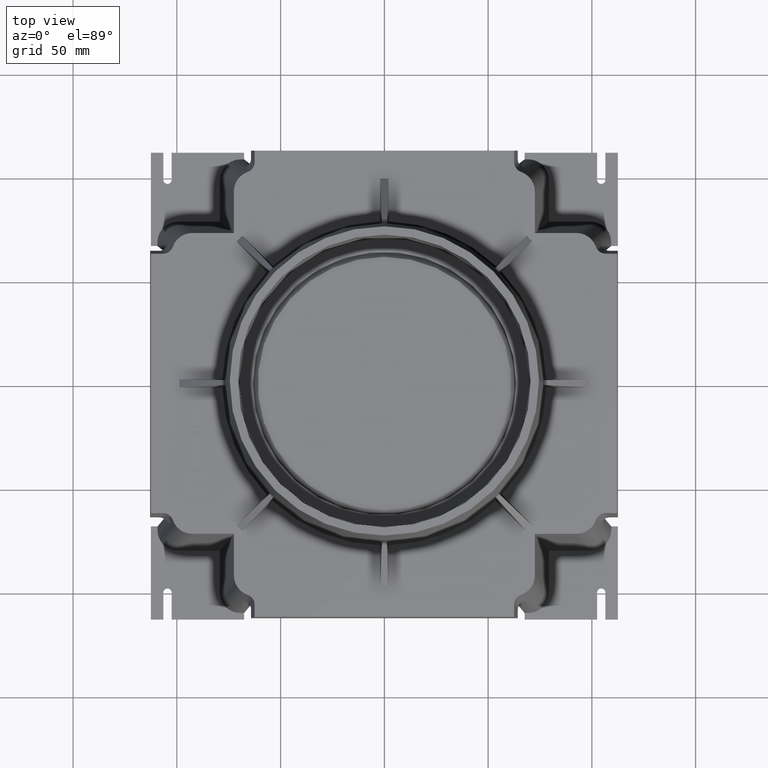
[diagram: clean part render]
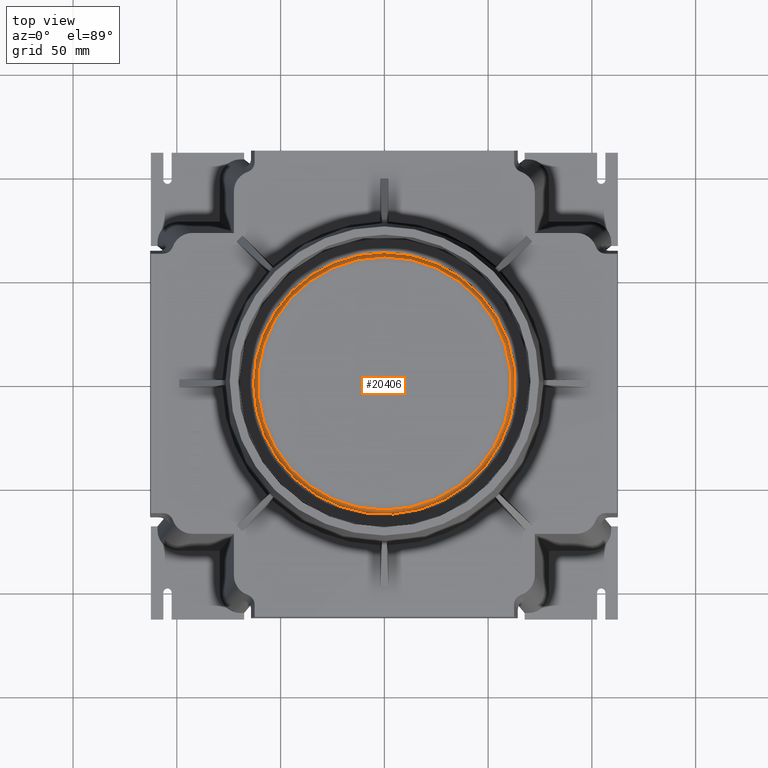
[diagram: same view with one face highlighted and labeled with its STEP entity id]
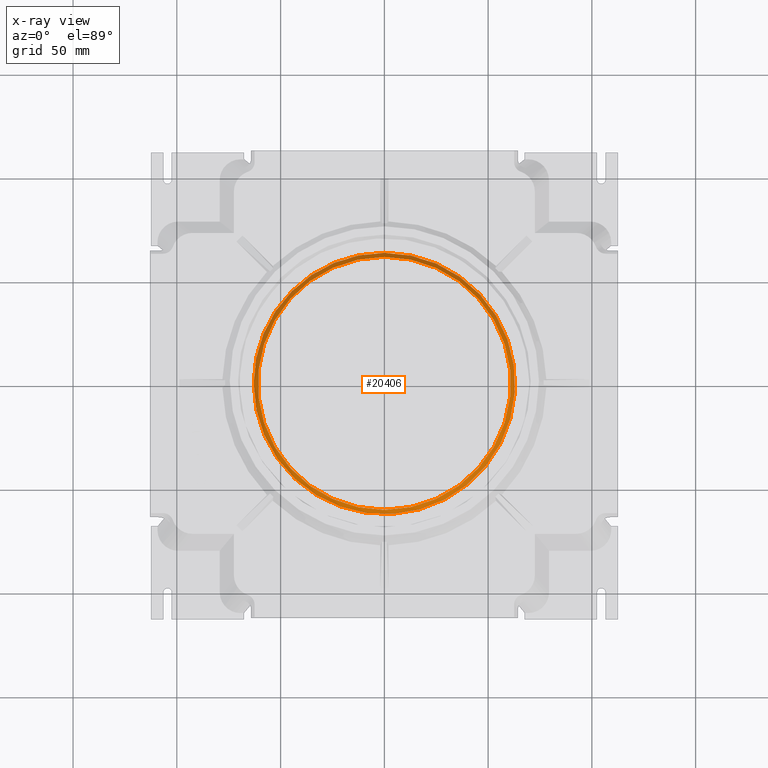
[diagram: x-ray of the same camera — body ghosted, the highlighted face saturated]
A machine part, top view. The second image highlights one B-rep face of the part: STEP entity #20406.
The next image is the same camera in x-ray: the body ghosted, the highlighted face saturated — about 0% of this face is hidden behind the body in this view.
In plain terms, the highlighted conical surface has half-angle 32.33 deg.
Its self-contained STEP definition (entity closure, byte-faithful):
#26=CONICAL_SURFACE('',#21536,62.25,0.564268188857933);
#534=CIRCLE('',#21534,61.);
#535=CIRCLE('',#21535,61.);
#536=CIRCLE('',#21537,62.9636916765669);
#537=CIRCLE('',#21538,62.9636916765669);
#1507=FACE_OUTER_BOUND('',#2556,.T.);
#2556=EDGE_LOOP('',(#17532,#17533,#17534,#17535,#17536,#17537));
#4855=LINE('',#34196,#7129);
#7129=VECTOR('',#25965,62.25);
#9257=VERTEX_POINT('',#34190);
#9258=VERTEX_POINT('',#34191);
#9259=VERTEX_POINT('',#34195);
#9260=VERTEX_POINT('',#34197);
#12048=EDGE_CURVE('',#9257,#9258,#534,.T.);
#12049=EDGE_CURVE('',#9258,#9257,#535,.T.);
#12050=EDGE_CURVE('',#9258,#9259,#4855,.T.);
#12051=EDGE_CURVE('',#9260,#9259,#536,.F.);
#12052=EDGE_CURVE('',#9259,#9260,#537,.F.);
#17532=ORIENTED_EDGE('',*,*,#12048,.F.);
#17533=ORIENTED_EDGE('',*,*,#12049,.F.);
#17534=ORIENTED_EDGE('',*,*,#12050,.T.);
#17535=ORIENTED_EDGE('',*,*,#12051,.F.);
#17536=ORIENTED_EDGE('',*,*,#12052,.F.);
#17537=ORIENTED_EDGE('',*,*,#12050,.F.);
#20406=ADVANCED_FACE('',(#1507),#26,.T.);
#21534=AXIS2_PLACEMENT_3D('',#34192,#25959,#25960);
#21535=AXIS2_PLACEMENT_3D('',#34193,#25961,#25962);
#21536=AXIS2_PLACEMENT_3D('',#34194,#25963,#25964);
#21537=AXIS2_PLACEMENT_3D('',#34198,#25966,#25967);
#21538=AXIS2_PLACEMENT_3D('',#34199,#25968,#25969);
#25959=DIRECTION('center_axis',(0.,0.,1.));
#25960=DIRECTION('ref_axis',(0.,-1.,0.));
#25961=DIRECTION('center_axis',(0.,0.,1.));
#25962=DIRECTION('ref_axis',(0.,-1.,0.));
#25963=DIRECTION('center_axis',(0.,0.,-1.));
#25964=DIRECTION('ref_axis',(0.,-1.,0.));
#25965=DIRECTION('',(-6.54938160885081E-17,0.534797593347792,-0.844980197489509));
#25966=DIRECTION('center_axis',(0.,0.,1.));
#25967=DIRECTION('ref_axis',(1.,0.,0.));
#25968=DIRECTION('center_axis',(0.,0.,1.));
#25969=DIRECTION('ref_axis',(1.,0.,0.));
#34190=CARTESIAN_POINT('',(0.,-61.,-2.00000000000001));
#34191=CARTESIAN_POINT('',(-7.47034547479885E-15,61.,-2.00000000000001));
#34192=CARTESIAN_POINT('Origin',(0.,0.,-2.00000000000002));
#34193=CARTESIAN_POINT('Origin',(0.,0.,-2.00000000000002));
#34194=CARTESIAN_POINT('Origin',(0.,0.,-3.97500000000002));
#34195=CARTESIAN_POINT('',(-7.71082834742085E-15,62.9636916765669,-5.10263284897571));
#34196=CARTESIAN_POINT('',(-7.62342632469227E-15,62.25,-3.97500000000002));
#34197=CARTESIAN_POINT('',(-62.9636916765669,-7.71082834742085E-15,-5.10263284897571));
#34198=CARTESIAN_POINT('Origin',(0.,0.,-5.10263284897571));
#34199=CARTESIAN_POINT('Origin',(0.,0.,-5.10263284897571));